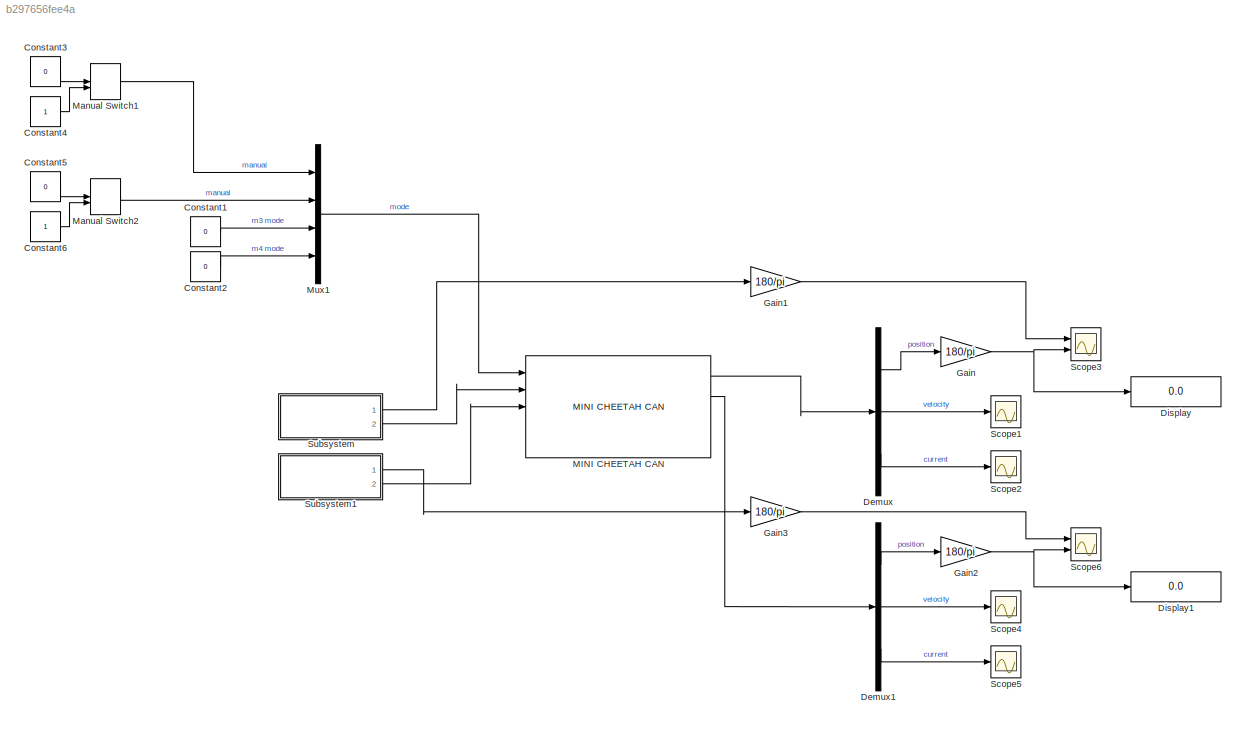
MODEL slx_b297656fee4a
KIND model
CONFIG AbsTol = auto
CONFIG EnableMultiTasking = on
CONFIG FixedStep = 0.002
CONFIG MaxStep = auto
CONFIG MinStep = auto
CONFIG RelTol = 1e-3
CONFIG SampleTimeConstraint = Unconstrained
CONFIG SolverName = FixedStepAuto
CONFIG StartTime = 0.0
CONFIG StopTime = inf
BLOCK [Constant] Constant1
  Value = 0
BLOCK [Constant] Constant2
  Value = 0
BLOCK [Constant] Constant3
  Value = 0
BLOCK [Constant] Constant4
BLOCK [Constant] Constant5
  Value = 0
BLOCK [Constant] Constant6
BLOCK [Demux] Demux
  Outputs = 3
  Ports = [1, 3]
BLOCK [Demux] Demux1
  Outputs = 3
  Ports = [1, 3]
BLOCK [Display] Display
  Decimation = 1
  Ports = [1]
BLOCK [Display] Display1
  Decimation = 1
  Ports = [1]
BLOCK [Gain] Gain
  Gain = 180/pi
BLOCK [Gain] Gain1
  Gain = 180/pi
BLOCK [Gain] Gain2
  Gain = 180/pi
BLOCK [Gain] Gain3
  Gain = 180/pi
BLOCK [Reference] MINI CHEETAH CAN  REF=can_bus_multi/MINI CHEETAH CAN  (lib defined in slx_f9e3077bc01c)
  Ports = [5, 4]
  SourceBlock = can_bus_multi/MINI CHEETAH CAN
  SourceProductName = CAN Bus Multi
  SourceType = Mini Cheetah CAN (Raspberry Pi)
BLOCK [ManualSwitch] Manual Switch1
BLOCK [ManualSwitch] Manual Switch2
BLOCK [Mux] Mux1
  DisplayOption = bar
  Ports = [4, 1]
BLOCK [Scope] Scope1
  Floating = off
  NumInputPorts = 1
  Ports = [1]
  ScopeSpecificationString = Simulink.scopes.TimeScopeBlockCfg('CurrentConfiguration', extmgr.ConfigurationSet(extmgr.Configuration('Core','General UI',true),extmgr.Configuration('Core','Source UI',true),extmgr.Configuration('Sources','WiredSimulink',true,'DataLoggingVariableName','ScopeData1'),extmgr.Configuration('Visuals','Time Domain',true),extmgr.Configuration('Tools','Plot Navigation',true),extmgr.Configuration('Tools',...<+40ch>
BLOCK [Scope] Scope2
  Floating = off
  NumInputPorts = 1
  Ports = [1]
  ScopeSpecificationString = Simulink.scopes.TimeScopeBlockCfg('CurrentConfiguration', extmgr.ConfigurationSet(extmgr.Configuration('Core','General UI',true),extmgr.Configuration('Core','Source UI',true),extmgr.Configuration('Sources','WiredSimulink',true),extmgr.Configuration('Visuals','Time Domain',true,'SerializedDisplays',{struct('MinYLimReal','-0.47363','MaxYLimReal','-0.27363','YLabelReal','','MinYLimMag','0.00000','Max...<+1329ch>
BLOCK [Scope] Scope3
  Floating = off
  NumInputPorts = 2
  Ports = [2]
  ScopeSpecificationString = Simulink.scopes.TimeScopeBlockCfg('CurrentConfiguration', extmgr.ConfigurationSet(extmgr.Configuration('Core','General UI',true),extmgr.Configuration('Core','Source UI',true),extmgr.Configuration('Sources','WiredSimulink',true,'DataLoggingVariableName','ScopeData2'),extmgr.Configuration('Visuals','Time Domain',true,'SerializedDisplays',{struct('MinYLimReal','-24.99803','MaxYLimReal','24.99803','YL...<+1377ch>
BLOCK [Scope] Scope4
  Floating = off
  NumInputPorts = 1
  Ports = [1]
  ScopeSpecificationString = Simulink.scopes.TimeScopeBlockCfg('CurrentConfiguration', extmgr.ConfigurationSet(extmgr.Configuration('Core','General UI',true),extmgr.Configuration('Core','Source UI',true),extmgr.Configuration('Sources','WiredSimulink',true,'DataLoggingVariableName','ScopeData3'),extmgr.Configuration('Visuals','Time Domain',true),extmgr.Configuration('Tools','Plot Navigation',true),extmgr.Configuration('Tools',...<+40ch>
BLOCK [Scope] Scope5
  Floating = off
  NumInputPorts = 1
  Ports = [1]
  ScopeSpecificationString = Simulink.scopes.TimeScopeBlockCfg('CurrentConfiguration', extmgr.ConfigurationSet(extmgr.Configuration('Core','General UI',true),extmgr.Configuration('Core','Source UI',true),extmgr.Configuration('Sources','WiredSimulink',true,'DataLoggingVariableName','ScopeData4'),extmgr.Configuration('Visuals','Time Domain',true,'SerializedDisplays',{struct('MinYLimReal','-0.47363','MaxYLimReal','-0.27363','YLa...<+1368ch>
BLOCK [Scope] Scope6
  Floating = off
  NumInputPorts = 2
  Ports = [2]
  ScopeSpecificationString = Simulink.scopes.TimeScopeBlockCfg('CurrentConfiguration', extmgr.ConfigurationSet(extmgr.Configuration('Core','General UI',true),extmgr.Configuration('Core','Source UI',true),extmgr.Configuration('Sources','WiredSimulink',true,'DataLoggingVariableName','ScopeData5'),extmgr.Configuration('Visuals','Time Domain',true,'SerializedDisplays',{struct('MinYLimReal','-24.99803','MaxYLimReal','24.99803','YL...<+1378ch>
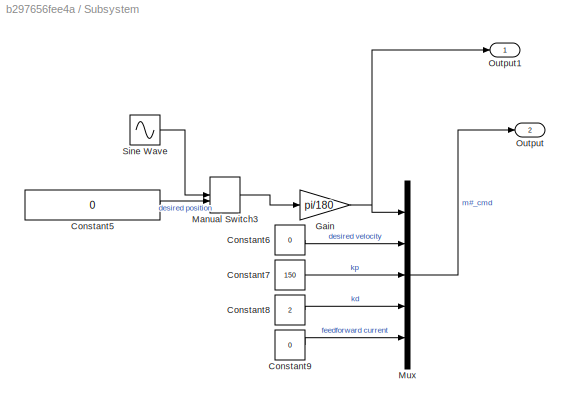
BLOCK [SubSystem] Subsystem
  Ports = [0, 2]
  RequestExecContextInheritance = off
BLOCK [Constant] Subsystem/Constant5
  Value = 0
BLOCK [Constant] Subsystem/Constant6
  Value = 0
BLOCK [Constant] Subsystem/Constant7
  Value = 150
BLOCK [Constant] Subsystem/Constant8
  Value = 2
BLOCK [Constant] Subsystem/Constant9
  Value = 0
BLOCK [Gain] Subsystem/Gain
  Gain = pi/180
BLOCK [ManualSwitch] Subsystem/Manual Switch3
  CurrentSetting = 0
BLOCK [Mux] Subsystem/Mux
  DisplayOption = bar
  Inputs = 5
  Ports = [5, 1]
BLOCK [Outport] Subsystem/Output
  Port = 2
BLOCK [Outport] Subsystem/Output1
BLOCK [Sin] Subsystem/Sine Wave
  Amplitude = 20
  Frequency = 8*pi
  Ports = [0, 1]
  SampleTime = 0
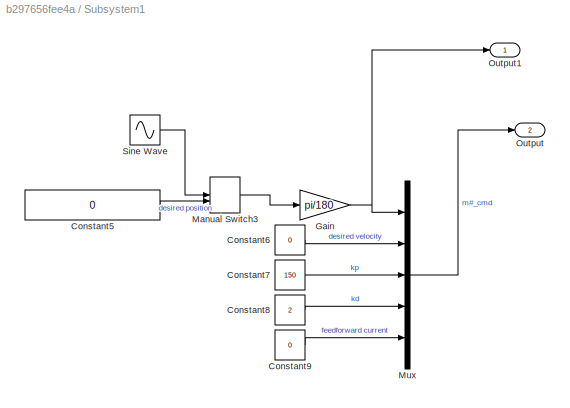
BLOCK [SubSystem] Subsystem1
  Ports = [0, 2]
  RequestExecContextInheritance = off
BLOCK [Constant] Subsystem1/Constant5
  Value = 0
BLOCK [Constant] Subsystem1/Constant6
  Value = 0
BLOCK [Constant] Subsystem1/Constant7
  Value = 150
BLOCK [Constant] Subsystem1/Constant8
  Value = 2
BLOCK [Constant] Subsystem1/Constant9
  Value = 0
BLOCK [Gain] Subsystem1/Gain
  Gain = pi/180
BLOCK [ManualSwitch] Subsystem1/Manual Switch3
BLOCK [Mux] Subsystem1/Mux
  DisplayOption = bar
  Inputs = 5
  Ports = [5, 1]
BLOCK [Outport] Subsystem1/Output
  Port = 2
BLOCK [Outport] Subsystem1/Output1
BLOCK [Sin] Subsystem1/Sine Wave
  Amplitude = 20
  Frequency = 8*pi
  Ports = [0, 1]
  SampleTime = 0
LINE Constant1:1 -> Mux1:3
LINE Constant2:1 -> Mux1:4
LINE Constant3:1 -> Manual Switch1:1
LINE Constant4:1 -> Manual Switch1:2
LINE Constant5:1 -> Manual Switch2:1
LINE Constant6:1 -> Manual Switch2:2
LINE Demux1:1 -> Gain2:1
LINE Demux1:2 -> Scope4:1
LINE Demux1:3 -> Scope5:1
LINE Demux:1 -> Gain:1
LINE Demux:2 -> Scope1:1
LINE Demux:3 -> Scope2:1
LINE Gain1:1 -> Scope3:1
NET Gain2:1 -> Display1:1, Scope6:2
LINE Gain3:1 -> Scope6:1
NET Gain:1 -> Display:1, Scope3:2
LINE MINI CHEETAH CAN:1 -> Demux:1
LINE MINI CHEETAH CAN:2 -> Demux1:1
LINE Manual Switch1:1 -> Mux1:1
LINE Manual Switch2:1 -> Mux1:2
LINE Mux1:1 -> MINI CHEETAH CAN:1
LINE Subsystem/Constant5:1 -> Subsystem/Manual Switch3:2
LINE Subsystem/Constant6:1 -> Subsystem/Mux:2
LINE Subsystem/Constant7:1 -> Subsystem/Mux:3
LINE Subsystem/Constant8:1 -> Subsystem/Mux:4
LINE Subsystem/Constant9:1 -> Subsystem/Mux:5
NET Subsystem/Gain:1 -> Subsystem/Mux:1, Subsystem/Output1:1
LINE Subsystem/Manual Switch3:1 -> Subsystem/Gain:1
LINE Subsystem/Mux:1 -> Subsystem/Output:1
LINE Subsystem/Sine Wave:1 -> Subsystem/Manual Switch3:1
LINE Subsystem1/Constant5:1 -> Subsystem1/Manual Switch3:2
LINE Subsystem1/Constant6:1 -> Subsystem1/Mux:2
LINE Subsystem1/Constant7:1 -> Subsystem1/Mux:3
LINE Subsystem1/Constant8:1 -> Subsystem1/Mux:4
LINE Subsystem1/Constant9:1 -> Subsystem1/Mux:5
NET Subsystem1/Gain:1 -> Subsystem1/Mux:1, Subsystem1/Output1:1
LINE Subsystem1/Manual Switch3:1 -> Subsystem1/Gain:1
LINE Subsystem1/Mux:1 -> Subsystem1/Output:1
LINE Subsystem1/Sine Wave:1 -> Subsystem1/Manual Switch3:1
LINE Subsystem1:1 -> Gain3:1
LINE Subsystem1:2 -> MINI CHEETAH CAN:3
LINE Subsystem:1 -> Gain1:1
LINE Subsystem:2 -> MINI CHEETAH CAN:2
note: NET lines group one-source signal fan-out (src -> all destinations, sorted); 1:1 wires keep LINE
